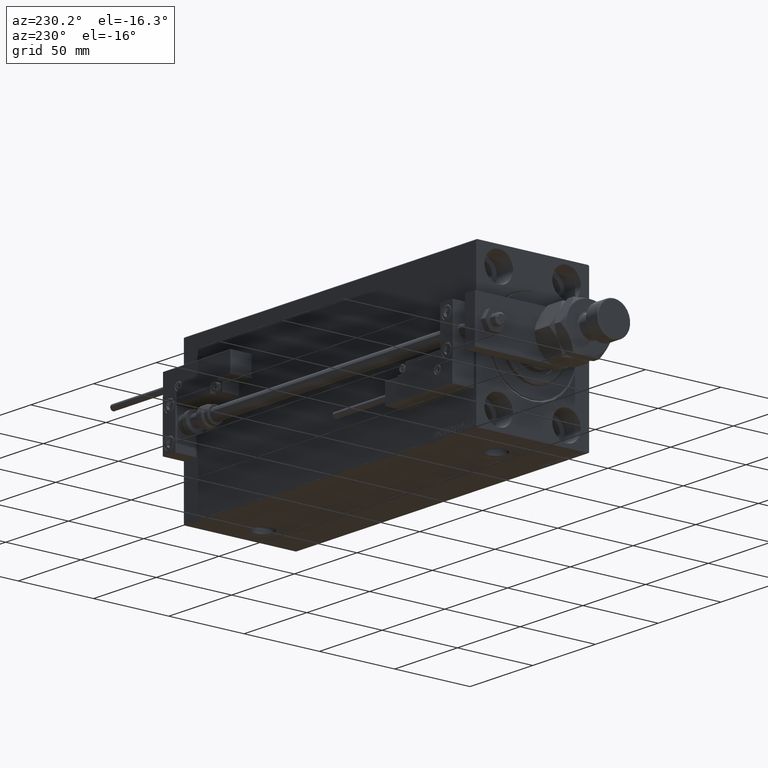
[diagram: clean part render]
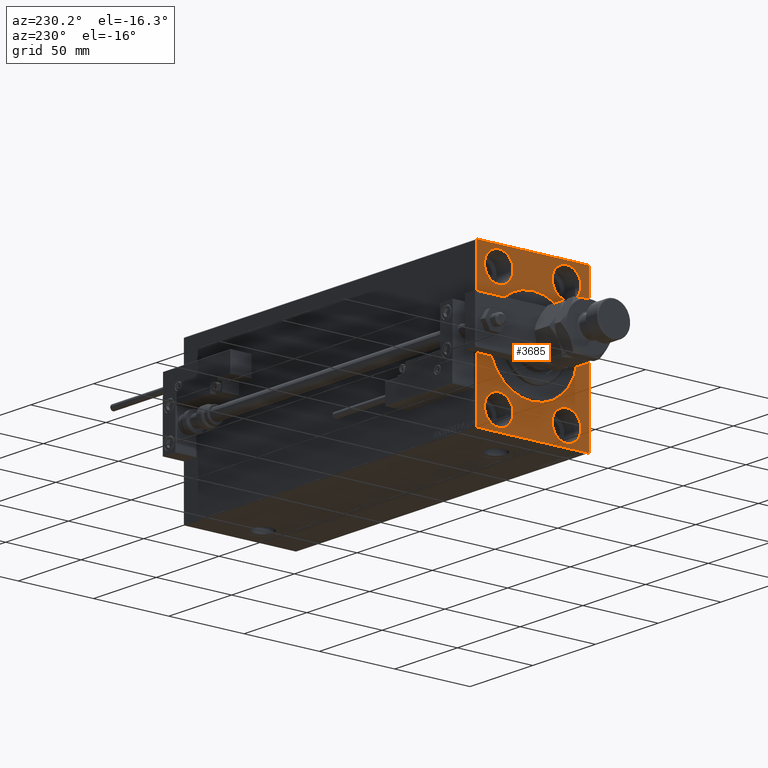
[diagram: same view with one face highlighted and labeled with its STEP entity id]
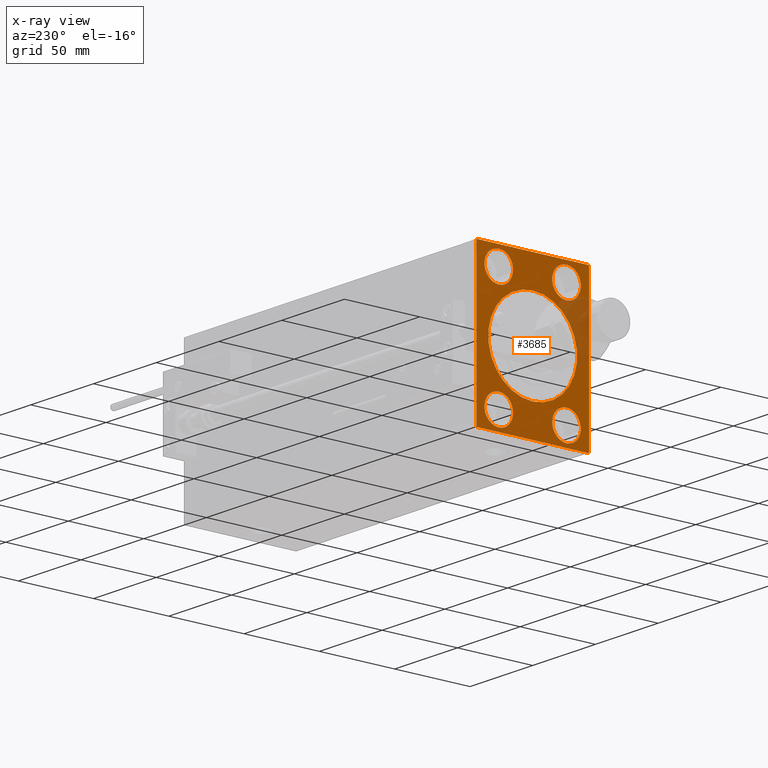
[diagram: x-ray of the same camera — body ghosted, the highlighted face saturated]
A machine part, auxiliary view. The second image highlights one B-rep face of the part: STEP entity #3685.
The next image is the same camera in x-ray: the body ghosted, the highlighted face saturated — about 12% of this face is hidden behind the body in this view.
In plain terms, the highlighted planar face has unit normal (1, 0, 0).
Its self-contained STEP definition (entity closure, byte-faithful):
#65 = EDGE_LOOP ( 'NONE', ( #19786, #11010 ) ) ;
#671 = ORIENTED_EDGE ( 'NONE', *, *, #6641, .T. ) ;
#996 = VERTEX_POINT ( 'NONE', #14279 ) ;
#1962 = EDGE_CURVE ( 'NONE', #46594, #26460, #25501, .T. ) ;
#2439 = ORIENTED_EDGE ( 'NONE', *, *, #38071, .F. ) ;
#2479 = CARTESIAN_POINT ( 'NONE',  ( 0.000000000000000000, 22.50000000000000355, 28.49999999999998934 ) ) ;
#2815 = ORIENTED_EDGE ( 'NONE', *, *, #50868, .F. ) ;
#3254 = DIRECTION ( 'NONE',  ( -1.000000000000000000, 0.000000000000000000, 0.000000000000000000 ) ) ;
#3465 = CARTESIAN_POINT ( 'NONE',  ( 0.000000000000000000, 37.50000000000000711, -49.50000000000000000 ) ) ;
#3552 = AXIS2_PLACEMENT_3D ( 'NONE', #5194, #25184, #38089 ) ;
#3685 = ADVANCED_FACE ( 'NONE', ( #13753, #10491, #46641, #30719, #18313, #34756 ), #26148, .F. ) ;
#3748 = DIRECTION ( 'NONE',  ( 0.000000000000000000, 0.000000000000000000, -1.000000000000000000 ) ) ;
#3783 = DIRECTION ( 'NONE',  ( -0.000000000000000000, -0.7071067811865671127, 0.7071067811865279218 ) ) ;
#3879 = CARTESIAN_POINT ( 'NONE',  ( 0.000000000000000000, -37.50000000000000711, 49.49999999999996447 ) ) ;
#3883 = DIRECTION ( 'NONE',  ( -1.000000000000000000, 0.000000000000000000, 0.000000000000000000 ) ) ;
#4042 = CIRCLE ( 'NONE', #21249, 29.49999999999994671 ) ;
#4052 = CARTESIAN_POINT ( 'NONE',  ( 0.000000000000000000, -37.00000000000000711, -50.00000000000000711 ) ) ;
#4225 = CARTESIAN_POINT ( 'NONE',  ( 0.000000000000000000, 0.000000000000000000, 0.000000000000000000 ) ) ;
#5160 = VERTEX_POINT ( 'NONE', #50054 ) ;
#5194 = CARTESIAN_POINT ( 'NONE',  ( 0.000000000000000000, 22.49999999999999645, -37.99999999999999289 ) ) ;
#5391 = CARTESIAN_POINT ( 'NONE',  ( 0.000000000000000000, 0.000000000000000000, 0.000000000000000000 ) ) ;
#5450 = DIRECTION ( 'NONE',  ( 0.000000000000000000, 0.000000000000000000, 1.000000000000000000 ) ) ;
#6180 = CARTESIAN_POINT ( 'NONE',  ( 0.000000000000000000, 22.50000000000000355, 37.99999999999999289 ) ) ;
#6328 = CARTESIAN_POINT ( 'NONE',  ( 0.000000000000000000, -37.50000000000000711, 49.49999999999996447 ) ) ;
#6641 = EDGE_CURVE ( 'NONE', #29058, #37276, #12376, .T. ) ;
#7463 = DIRECTION ( 'NONE',  ( 1.000000000000000000, 0.000000000000000000, 0.000000000000000000 ) ) ;
#7823 = LINE ( 'NONE', #4052, #25268 ) ;
#8142 = EDGE_CURVE ( 'NONE', #26460, #46594, #44668, .T. ) ;
#8689 = EDGE_CURVE ( 'NONE', #34050, #49100, #31737, .T. ) ;
#9506 = DIRECTION ( 'NONE',  ( -1.000000000000000000, 0.000000000000000000, 0.000000000000000000 ) ) ;
#9558 = CARTESIAN_POINT ( 'NONE',  ( 0.000000000000000000, -37.50000000000000711, -50.00000000000000711 ) ) ;
#9614 = CARTESIAN_POINT ( 'NONE',  ( 0.000000000000000000, 37.50000000000000711, -50.00000000000000000 ) ) ;
#9838 = DIRECTION ( 'NONE',  ( 0.000000000000000000, 0.000000000000000000, 1.000000000000000000 ) ) ;
#10410 = CARTESIAN_POINT ( 'NONE',  ( 0.000000000000000000, -22.49999999999999645, 28.49999999999998934 ) ) ;
#10491 = FACE_BOUND ( 'NONE', #45508, .T. ) ;
#10617 = LINE ( 'NONE', #3879, #46414 ) ;
#10672 = EDGE_CURVE ( 'NONE', #49100, #34050, #42991, .T. ) ;
#11010 = ORIENTED_EDGE ( 'NONE', *, *, #11030, .T. ) ;
#11030 = EDGE_CURVE ( 'NONE', #22685, #33086, #37046, .T. ) ;
#11071 = AXIS2_PLACEMENT_3D ( 'NONE', #50570, #42478, #9838 ) ;
#11692 = ORIENTED_EDGE ( 'NONE', *, *, #8689, .F. ) ;
#12355 = EDGE_CURVE ( 'NONE', #45577, #5160, #46001, .T. ) ;
#12358 = ORIENTED_EDGE ( 'NONE', *, *, #30097, .T. ) ;
#12376 = LINE ( 'NONE', #3465, #12762 ) ;
#12762 = VECTOR ( 'NONE', #28820, 1000.000000000000000 ) ;
#13123 = EDGE_CURVE ( 'NONE', #25545, #45316, #28573, .T. ) ;
#13374 = AXIS2_PLACEMENT_3D ( 'NONE', #40206, #3254, #32115 ) ;
#13720 = ORIENTED_EDGE ( 'NONE', *, *, #25781, .F. ) ;
#13753 = FACE_BOUND ( 'NONE', #65, .T. ) ;
#14279 = CARTESIAN_POINT ( 'NONE',  ( 0.000000000000000000, -22.50000000000000711, -47.49999999999999289 ) ) ;
#14529 = VERTEX_POINT ( 'NONE', #15193 ) ;
#14931 = AXIS2_PLACEMENT_3D ( 'NONE', #23556, #30837, #35411 ) ;
#15193 = CARTESIAN_POINT ( 'NONE',  ( 0.000000000000000000, 22.49999999999999645, -47.49999999999999289 ) ) ;
#15216 = ORIENTED_EDGE ( 'NONE', *, *, #51093, .F. ) ;
#15236 = VERTEX_POINT ( 'NONE', #50938 ) ;
#15398 = AXIS2_PLACEMENT_3D ( 'NONE', #6180, #17803, #18329 ) ;
#16110 = AXIS2_PLACEMENT_3D ( 'NONE', #22627, #22904, #42598 ) ;
#16324 = EDGE_LOOP ( 'NONE', ( #47531, #40792, #41735, #46670, #30426, #671, #38099, #12358 ) ) ;
#16661 = EDGE_CURVE ( 'NONE', #45577, #15236, #47630, .T. ) ;
#17562 = CARTESIAN_POINT ( 'NONE',  ( 0.000000000000000000, 37.50000000000000711, -49.50000000000000000 ) ) ;
#17803 = DIRECTION ( 'NONE',  ( -1.000000000000000000, 0.000000000000000000, 0.000000000000000000 ) ) ;
#18112 = VECTOR ( 'NONE', #19046, 1000.000000000000000 ) ;
#18313 = FACE_BOUND ( 'NONE', #22324, .T. ) ;
#18329 = DIRECTION ( 'NONE',  ( 0.000000000000000000, 0.000000000000000000, 1.000000000000000000 ) ) ;
#18445 = DIRECTION ( 'NONE',  ( 0.000000000000000000, 1.000000000000000000, 9.251858538542970348E-17 ) ) ;
#19046 = DIRECTION ( 'NONE',  ( 0.000000000000000000, -1.000000000000000000, -1.850371707708594316E-16 ) ) ;
#19739 = AXIS2_PLACEMENT_3D ( 'NONE', #21645, #9506, #5450 ) ;
#19779 = DIRECTION ( 'NONE',  ( -0.000000000000000000, 0.7071067811865279218, 0.7071067811865672237 ) ) ;
#19786 = ORIENTED_EDGE ( 'NONE', *, *, #41984, .T. ) ;
#21249 = AXIS2_PLACEMENT_3D ( 'NONE', #4225, #7463, #33079 ) ;
#21645 = CARTESIAN_POINT ( 'NONE',  ( 0.000000000000000000, 22.50000000000000355, 37.99999999999999289 ) ) ;
#22324 = EDGE_LOOP ( 'NONE', ( #2815, #2439 ) ) ;
#22627 = CARTESIAN_POINT ( 'NONE',  ( 0.000000000000000000, 0.000000000000000000, 0.000000000000000000 ) ) ;
#22685 = VERTEX_POINT ( 'NONE', #23490 ) ;
#22903 = AXIS2_PLACEMENT_3D ( 'NONE', #32467, #3883, #40563 ) ;
#22904 = DIRECTION ( 'NONE',  ( 1.000000000000000000, 0.000000000000000000, 0.000000000000000000 ) ) ;
#23490 = CARTESIAN_POINT ( 'NONE',  ( 0.000000000000000000, 3.612708057484685293E-15, -29.49999999999994671 ) ) ;
#23556 = CARTESIAN_POINT ( 'NONE',  ( 0.000000000000000000, 22.49999999999999645, -37.99999999999999289 ) ) ;
#23562 = CARTESIAN_POINT ( 'NONE',  ( 0.000000000000000000, -22.49999999999999645, 47.49999999999999289 ) ) ;
#24760 = CARTESIAN_POINT ( 'NONE',  ( 0.000000000000000000, 37.00000000000003553, -50.00000000000000000 ) ) ;
#25184 = DIRECTION ( 'NONE',  ( -1.000000000000000000, 0.000000000000000000, 0.000000000000000000 ) ) ;
#25267 = AXIS2_PLACEMENT_3D ( 'NONE', #32512, #37364, #45200 ) ;
#25268 = VECTOR ( 'NONE', #3783, 1000.000000000000000 ) ;
#25501 = CIRCLE ( 'NONE', #22903, 9.500000000000001776 ) ;
#25545 = VERTEX_POINT ( 'NONE', #6328 ) ;
#25758 = LINE ( 'NONE', #9558, #46873 ) ;
#25781 = EDGE_CURVE ( 'NONE', #31008, #14529, #50922, .T. ) ;
#26148 = PLANE ( 'NONE',  #16110 ) ;
#26460 = VERTEX_POINT ( 'NONE', #10410 ) ;
#26600 = LINE ( 'NONE', #9614, #31735 ) ;
#26659 = AXIS2_PLACEMENT_3D ( 'NONE', #5391, #46920, #42881 ) ;
#27119 = ORIENTED_EDGE ( 'NONE', *, *, #1962, .F. ) ;
#27843 = CIRCLE ( 'NONE', #14931, 9.500000000000001776 ) ;
#28573 = LINE ( 'NONE', #47972, #47288 ) ;
#28820 = DIRECTION ( 'NONE',  ( 0.000000000000000000, -0.7071067811865279218, -0.7071067811865671127 ) ) ;
#29058 = VERTEX_POINT ( 'NONE', #17562 ) ;
#29297 = DIRECTION ( 'NONE',  ( -0.000000000000000000, 0.7071067811865622277, -0.7071067811865328068 ) ) ;
#29318 = VECTOR ( 'NONE', #29297, 1000.000000000000000 ) ;
#30097 = EDGE_CURVE ( 'NONE', #43225, #45316, #7823, .T. ) ;
#30426 = ORIENTED_EDGE ( 'NONE', *, *, #46059, .F. ) ;
#30719 = FACE_BOUND ( 'NONE', #46598, .T. ) ;
#30837 = DIRECTION ( 'NONE',  ( -1.000000000000000000, 0.000000000000000000, 0.000000000000000000 ) ) ;
#31008 = VERTEX_POINT ( 'NONE', #40742 ) ;
#31236 = VERTEX_POINT ( 'NONE', #35065 ) ;
#31735 = VECTOR ( 'NONE', #42259, 1000.000000000000000 ) ;
#31737 = CIRCLE ( 'NONE', #15398, 9.500000000000001776 ) ;
#32115 = DIRECTION ( 'NONE',  ( 0.000000000000000000, 0.000000000000000000, 1.000000000000000000 ) ) ;
#32342 = CIRCLE ( 'NONE', #13374, 9.500000000000001776 ) ;
#32467 = CARTESIAN_POINT ( 'NONE',  ( 0.000000000000000000, -22.49999999999999645, 37.99999999999999289 ) ) ;
#32512 = CARTESIAN_POINT ( 'NONE',  ( 0.000000000000000000, -22.50000000000000711, -37.99999999999999289 ) ) ;
#32973 = EDGE_CURVE ( 'NONE', #43225, #37276, #25758, .T. ) ;
#33079 = DIRECTION ( 'NONE',  ( 0.000000000000000000, 0.000000000000000000, -1.000000000000000000 ) ) ;
#33086 = VERTEX_POINT ( 'NONE', #50553 ) ;
#33091 = EDGE_LOOP ( 'NONE', ( #27119, #49931 ) ) ;
#34050 = VERTEX_POINT ( 'NONE', #44318 ) ;
#34104 = CARTESIAN_POINT ( 'NONE',  ( 0.000000000000000000, 36.99999999999999289, 50.00000000000000711 ) ) ;
#34520 = CARTESIAN_POINT ( 'NONE',  ( 0.000000000000000000, 36.99999999999999289, 50.00000000000000711 ) ) ;
#34756 = FACE_OUTER_BOUND ( 'NONE', #16324, .T. ) ;
#35065 = CARTESIAN_POINT ( 'NONE',  ( 0.000000000000000000, -22.50000000000000711, -28.49999999999998934 ) ) ;
#35411 = DIRECTION ( 'NONE',  ( 0.000000000000000000, 0.000000000000000000, 1.000000000000000000 ) ) ;
#37046 = CIRCLE ( 'NONE', #26659, 29.49999999999994671 ) ;
#37276 = VERTEX_POINT ( 'NONE', #24760 ) ;
#37364 = DIRECTION ( 'NONE',  ( -1.000000000000000000, 0.000000000000000000, 0.000000000000000000 ) ) ;
#38071 = EDGE_CURVE ( 'NONE', #996, #31236, #32342, .T. ) ;
#38089 = DIRECTION ( 'NONE',  ( 0.000000000000000000, 0.000000000000000000, 1.000000000000000000 ) ) ;
#38099 = ORIENTED_EDGE ( 'NONE', *, *, #32973, .F. ) ;
#40206 = CARTESIAN_POINT ( 'NONE',  ( 0.000000000000000000, -22.50000000000000711, -37.99999999999999289 ) ) ;
#40563 = DIRECTION ( 'NONE',  ( 0.000000000000000000, 0.000000000000000000, 1.000000000000000000 ) ) ;
#40742 = CARTESIAN_POINT ( 'NONE',  ( 0.000000000000000000, 22.49999999999999645, -28.49999999999998934 ) ) ;
#40792 = ORIENTED_EDGE ( 'NONE', *, *, #46664, .T. ) ;
#41735 = ORIENTED_EDGE ( 'NONE', *, *, #16661, .F. ) ;
#41984 = EDGE_CURVE ( 'NONE', #33086, #22685, #4042, .T. ) ;
#42259 = DIRECTION ( 'NONE',  ( 0.000000000000000000, -1.387778780781445676E-16, 1.000000000000000000 ) ) ;
#42478 = DIRECTION ( 'NONE',  ( -1.000000000000000000, 0.000000000000000000, 0.000000000000000000 ) ) ;
#42598 = DIRECTION ( 'NONE',  ( 0.000000000000000000, 0.000000000000000000, -1.000000000000000000 ) ) ;
#42881 = DIRECTION ( 'NONE',  ( 0.000000000000000000, 0.000000000000000000, -1.000000000000000000 ) ) ;
#42991 = CIRCLE ( 'NONE', #19739, 9.500000000000001776 ) ;
#43225 = VERTEX_POINT ( 'NONE', #46531 ) ;
#44311 = CARTESIAN_POINT ( 'NONE',  ( 0.000000000000000000, -37.50000000000000711, -49.50000000000003553 ) ) ;
#44318 = CARTESIAN_POINT ( 'NONE',  ( 0.000000000000000000, 22.50000000000000355, 47.49999999999999289 ) ) ;
#44668 = CIRCLE ( 'NONE', #11071, 9.500000000000001776 ) ;
#45200 = DIRECTION ( 'NONE',  ( 0.000000000000000000, 0.000000000000000000, 1.000000000000000000 ) ) ;
#45316 = VERTEX_POINT ( 'NONE', #44311 ) ;
#45508 = EDGE_LOOP ( 'NONE', ( #13720, #15216 ) ) ;
#45577 = VERTEX_POINT ( 'NONE', #34520 ) ;
#46001 = LINE ( 'NONE', #34104, #29318 ) ;
#46059 = EDGE_CURVE ( 'NONE', #29058, #5160, #26600, .T. ) ;
#46414 = VECTOR ( 'NONE', #19779, 1000.000000000000000 ) ;
#46531 = CARTESIAN_POINT ( 'NONE',  ( 0.000000000000000000, -37.00000000000000711, -50.00000000000000711 ) ) ;
#46594 = VERTEX_POINT ( 'NONE', #23562 ) ;
#46598 = EDGE_LOOP ( 'NONE', ( #11692, #50348 ) ) ;
#46641 = FACE_BOUND ( 'NONE', #33091, .T. ) ;
#46664 = EDGE_CURVE ( 'NONE', #25545, #15236, #10617, .T. ) ;
#46670 = ORIENTED_EDGE ( 'NONE', *, *, #12355, .T. ) ;
#46873 = VECTOR ( 'NONE', #18445, 1000.000000000000000 ) ;
#46920 = DIRECTION ( 'NONE',  ( 1.000000000000000000, 0.000000000000000000, 0.000000000000000000 ) ) ;
#47288 = VECTOR ( 'NONE', #3748, 1000.000000000000000 ) ;
#47368 = CARTESIAN_POINT ( 'NONE',  ( 0.000000000000000000, 37.49999999999999289, 50.00000000000000711 ) ) ;
#47531 = ORIENTED_EDGE ( 'NONE', *, *, #13123, .F. ) ;
#47630 = LINE ( 'NONE', #47368, #18112 ) ;
#47972 = CARTESIAN_POINT ( 'NONE',  ( 0.000000000000000000, -37.50000000000000711, 49.99999999999999289 ) ) ;
#49100 = VERTEX_POINT ( 'NONE', #2479 ) ;
#49931 = ORIENTED_EDGE ( 'NONE', *, *, #8142, .F. ) ;
#50054 = CARTESIAN_POINT ( 'NONE',  ( 0.000000000000000000, 37.49999999999999289, 49.50000000000002842 ) ) ;
#50348 = ORIENTED_EDGE ( 'NONE', *, *, #10672, .F. ) ;
#50553 = CARTESIAN_POINT ( 'NONE',  ( 0.000000000000000000, 0.000000000000000000, 29.49999999999994671 ) ) ;
#50570 = CARTESIAN_POINT ( 'NONE',  ( 0.000000000000000000, -22.49999999999999645, 37.99999999999999289 ) ) ;
#50868 = EDGE_CURVE ( 'NONE', #31236, #996, #51072, .T. ) ;
#50922 = CIRCLE ( 'NONE', #3552, 9.500000000000001776 ) ;
#50938 = CARTESIAN_POINT ( 'NONE',  ( 0.000000000000000000, -37.00000000000000711, 49.99999999999999289 ) ) ;
#51072 = CIRCLE ( 'NONE', #25267, 9.500000000000001776 ) ;
#51093 = EDGE_CURVE ( 'NONE', #14529, #31008, #27843, .T. ) ;